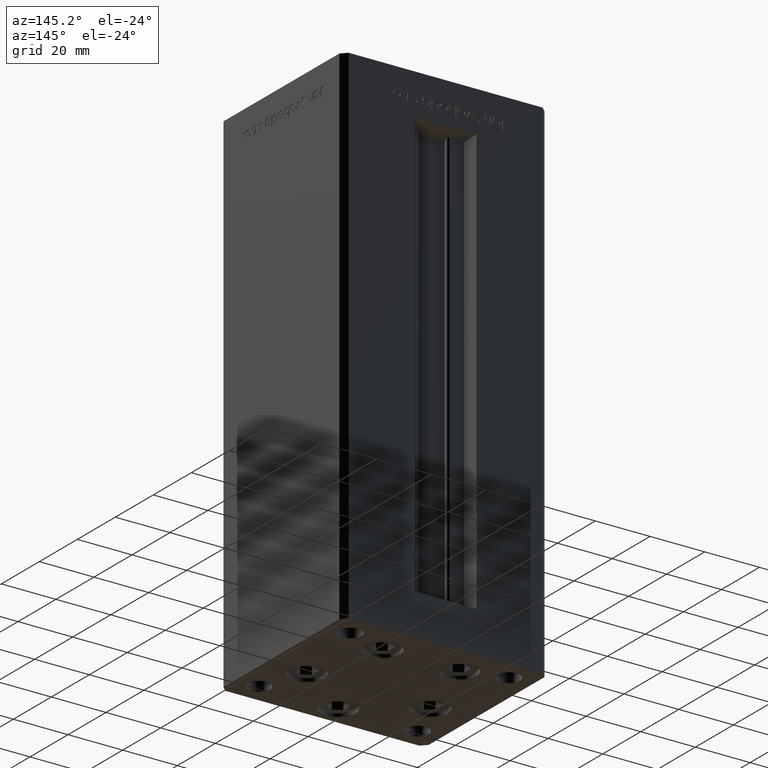
[diagram: clean part render]
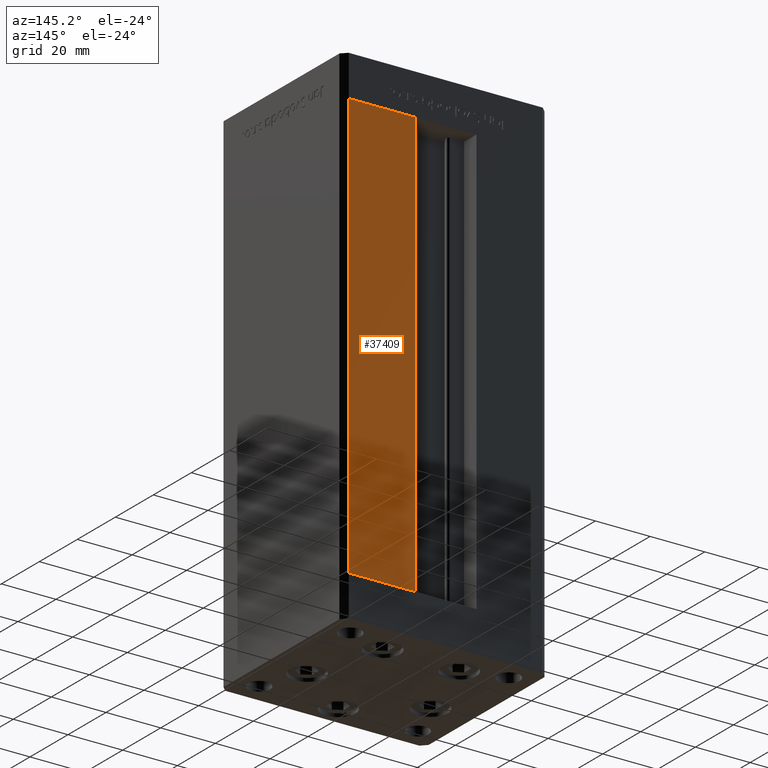
[diagram: same view with one face highlighted and labeled with its STEP entity id]
A machine part, auxiliary view. The second image highlights one B-rep face of the part: STEP entity #37409.
In plain terms, the highlighted planar face has unit normal (0, -1, 0).
Its self-contained STEP definition (entity closure, byte-faithful):
#1352 = DIRECTION ( 'NONE',  ( -1.000000000000000000, 0.000000000000000000, 0.000000000000000000 ) ) ;
#3968 = FACE_OUTER_BOUND ( 'NONE', #40278, .T. ) ;
#4862 = VECTOR ( 'NONE', #43517, 1000.000000000000000 ) ;
#6311 = EDGE_CURVE ( 'NONE', #36520, #21609, #37716, .T. ) ;
#8077 = CARTESIAN_POINT ( 'NONE',  ( 35.50000000000000000, 32.49999999999999289, 156.0000000000000000 ) ) ;
#9173 = CARTESIAN_POINT ( 'NONE',  ( 11.25000000000000178, 32.49999999999999289, 0.000000000000000000 ) ) ;
#11984 = EDGE_CURVE ( 'NONE', #44405, #36520, #27345, .T. ) ;
#12021 = VERTEX_POINT ( 'NONE', #19435 ) ;
#12681 = DIRECTION ( 'NONE',  ( 0.000000000000000000, -0.000000000000000000, -1.000000000000000000 ) ) ;
#17678 = CARTESIAN_POINT ( 'NONE',  ( -11.25000000000000178, 32.49999999999999289, 156.0000000000000000 ) ) ;
#19114 = EDGE_CURVE ( 'NONE', #12021, #44405, #41715, .T. ) ;
#19435 = CARTESIAN_POINT ( 'NONE',  ( 35.50000000000000000, 32.49999999999999289, 0.000000000000000000 ) ) ;
#21609 = VERTEX_POINT ( 'NONE', #8077 ) ;
#21962 = EDGE_CURVE ( 'NONE', #21609, #12021, #27173, .T. ) ;
#24535 = DIRECTION ( 'NONE',  ( 0.000000000000000000, -1.000000000000000000, 0.000000000000000000 ) ) ;
#26621 = VECTOR ( 'NONE', #39464, 1000.000000000000000 ) ;
#27173 = LINE ( 'NONE', #35620, #4862 ) ;
#27345 = LINE ( 'NONE', #51060, #26621 ) ;
#27710 = CARTESIAN_POINT ( 'NONE',  ( 11.24999999999999467, 32.49999999999999289, 156.0000000000000000 ) ) ;
#29233 = VECTOR ( 'NONE', #1352, 1000.000000000000000 ) ;
#32763 = CARTESIAN_POINT ( 'NONE',  ( -11.25000000000000178, 32.49999999999999289, 0.000000000000000000 ) ) ;
#33331 = ORIENTED_EDGE ( 'NONE', *, *, #6311, .T. ) ;
#33761 = DIRECTION ( 'NONE',  ( 1.000000000000000000, 0.000000000000000000, 0.000000000000000000 ) ) ;
#35543 = VECTOR ( 'NONE', #33761, 1000.000000000000000 ) ;
#35620 = CARTESIAN_POINT ( 'NONE',  ( 35.50000000000000000, 32.49999999999999289, 156.0000000000000000 ) ) ;
#36421 = CARTESIAN_POINT ( 'NONE',  ( -11.25000000000000178, 32.49999999999999289, 156.0000000000000000 ) ) ;
#36520 = VERTEX_POINT ( 'NONE', #27710 ) ;
#37409 = ADVANCED_FACE ( 'NONE', ( #3968 ), #47750, .F. ) ;
#37716 = LINE ( 'NONE', #17678, #35543 ) ;
#39334 = ORIENTED_EDGE ( 'NONE', *, *, #11984, .T. ) ;
#39464 = DIRECTION ( 'NONE',  ( -0.000000000000000000, -0.000000000000000000, 1.000000000000000000 ) ) ;
#40278 = EDGE_LOOP ( 'NONE', ( #47318, #39334, #33331, #43462 ) ) ;
#41715 = LINE ( 'NONE', #32763, #29233 ) ;
#43462 = ORIENTED_EDGE ( 'NONE', *, *, #21962, .T. ) ;
#43517 = DIRECTION ( 'NONE',  ( -0.000000000000000000, -0.000000000000000000, -1.000000000000000000 ) ) ;
#44405 = VERTEX_POINT ( 'NONE', #9173 ) ;
#47318 = ORIENTED_EDGE ( 'NONE', *, *, #19114, .T. ) ;
#47750 = PLANE ( 'NONE',  #50651 ) ;
#50651 = AXIS2_PLACEMENT_3D ( 'NONE', #36421, #24535, #12681 ) ;
#51060 = CARTESIAN_POINT ( 'NONE',  ( 11.25000000000000178, 32.49999999999999289, 0.000000000000000000 ) ) ;